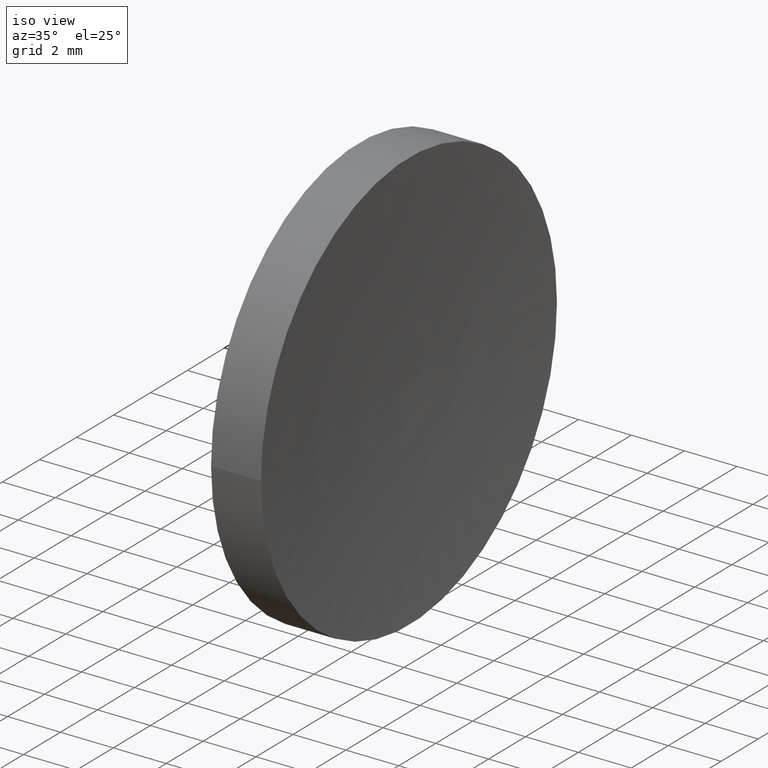
[diagram: clean part render]
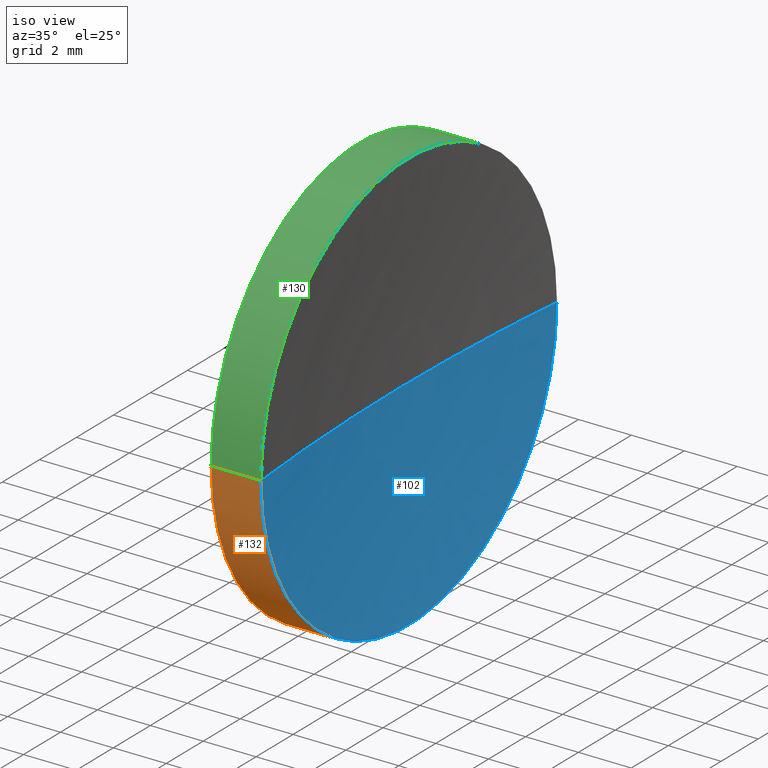
[diagram: same view with three faces highlighted in distinct colors, each labeled with its STEP entity id]
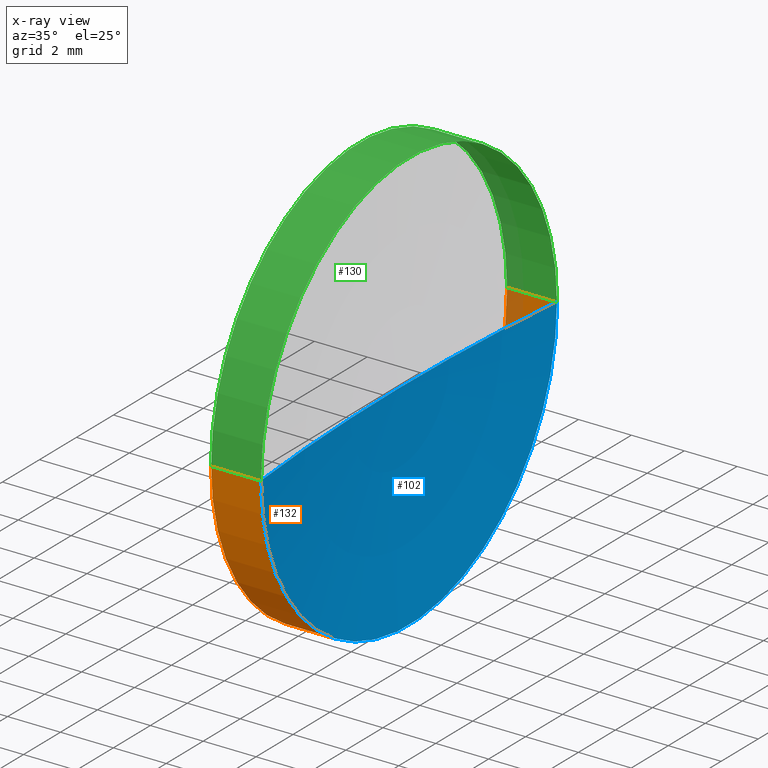
[diagram: x-ray of the same camera — body ghosted, the three highlighted faces saturated]
A machine part, iso view with three faces highlighted in distinct colors.
The next image is the same camera in x-ray (body ghosted, the three faces saturated) — at least one of them is partly hidden behind the body in this view.
Their STEP definitions:

[orange] entity #132 — the highlighted cylindrical surface (partial cylindrical patch) has radius 8 mm, axis along (-1, 0, -0).
#1 = VERTEX_POINT ( 'NONE', #159 ) ;
#2 = AXIS2_PLACEMENT_3D ( 'NONE', #19, #97, #115 ) ;
#10 = CARTESIAN_POINT ( 'NONE',  ( 44.85442262622448300, 34.06225218280608400, 9.797174393178825700E-016 ) ) ;
#18 = DIRECTION ( 'NONE',  ( -1.000000000000000000, 4.058245434298766700E-016, -0.0000000000000000000 ) ) ;
#19 = CARTESIAN_POINT ( 'NONE',  ( 44.85442262622448300, 26.06225218280608400, 0.0000000000000000000 ) ) ;
#32 = CARTESIAN_POINT ( 'NONE',  ( 46.74264137625596800, 34.06225218280607700, 9.797174393178817800E-016 ) ) ;
#36 = DIRECTION ( 'NONE',  ( 0.0000000000000000000, -1.000000000000000000, 0.0000000000000000000 ) ) ;
#38 = VECTOR ( 'NONE', #18, 1000.000000000000000 ) ;
#41 = CARTESIAN_POINT ( 'NONE',  ( 46.74264137625596800, 18.06225218280609100, 0.0000000000000000000 ) ) ;
#54 = EDGE_LOOP ( 'NONE', ( #92, #109, #133, #135 ) ) ;
#55 = CARTESIAN_POINT ( 'NONE',  ( 46.74264137625597500, 26.06225218280608400, 0.0000000000000000000 ) ) ;
#57 = DIRECTION ( 'NONE',  ( -1.000000000000000000, 4.058245434298766700E-016, -0.0000000000000000000 ) ) ;
#60 = VECTOR ( 'NONE', #98, 1000.000000000000000 ) ;
#61 = LINE ( 'NONE', #111, #38 ) ;
#62 = CIRCLE ( 'NONE', #2, 8.000000000000000000 ) ;
#70 = VERTEX_POINT ( 'NONE', #41 ) ;
#76 = EDGE_CURVE ( 'NONE', #145, #1, #62, .T. ) ;
#77 = CYLINDRICAL_SURFACE ( 'NONE', #91, 8.000000000000000000 ) ;
#79 = EDGE_CURVE ( 'NONE', #70, #1, #61, .T. ) ;
#86 = CARTESIAN_POINT ( 'NONE',  ( 43.01195023616492100, 26.06225218280608400, 0.0000000000000000000 ) ) ;
#88 = DIRECTION ( 'NONE',  ( 0.0000000000000000000, -1.000000000000000000, 0.0000000000000000000 ) ) ;
#89 = CIRCLE ( 'NONE', #99, 8.000000000000000000 ) ;
#91 = AXIS2_PLACEMENT_3D ( 'NONE', #86, #57, #88 ) ;
#92 = ORIENTED_EDGE ( 'NONE', *, *, #165, .F. ) ;
#97 = DIRECTION ( 'NONE',  ( -1.000000000000000000, 4.058245434298766700E-016, -0.0000000000000000000 ) ) ;
#98 = DIRECTION ( 'NONE',  ( -1.000000000000000000, 4.058245434298766700E-016, -0.0000000000000000000 ) ) ;
#99 = AXIS2_PLACEMENT_3D ( 'NONE', #55, #100, #36 ) ;
#100 = DIRECTION ( 'NONE',  ( -1.000000000000000000, 4.058245434298766700E-016, -0.0000000000000000000 ) ) ;
#109 = ORIENTED_EDGE ( 'NONE', *, *, #150, .T. ) ;
#111 = CARTESIAN_POINT ( 'NONE',  ( 43.01195023616492100, 18.06225218280608400, 0.0000000000000000000 ) ) ;
#115 = DIRECTION ( 'NONE',  ( 0.0000000000000000000, -1.000000000000000000, 0.0000000000000000000 ) ) ;
#121 = FACE_OUTER_BOUND ( 'NONE', #54, .T. ) ;
#132 = ADVANCED_FACE ( 'NONE', ( #121 ), #77, .T. ) ;
#133 = ORIENTED_EDGE ( 'NONE', *, *, #79, .T. ) ;
#135 = ORIENTED_EDGE ( 'NONE', *, *, #76, .F. ) ;
#141 = VERTEX_POINT ( 'NONE', #32 ) ;
#145 = VERTEX_POINT ( 'NONE', #10 ) ;
#149 = CARTESIAN_POINT ( 'NONE',  ( 43.01195023616492100, 34.06225218280608400, 9.797174393178825700E-016 ) ) ;
#150 = EDGE_CURVE ( 'NONE', #141, #70, #89, .T. ) ;
#153 = LINE ( 'NONE', #149, #60 ) ;
#159 = CARTESIAN_POINT ( 'NONE',  ( 44.85442262622448300, 18.06225218280608400, 0.0000000000000000000 ) ) ;
#165 = EDGE_CURVE ( 'NONE', #141, #145, #153, .T. ) ;

[blue] entity #102 — the highlighted toroidal blend (fillet) surface has major radius 0.0001 mm and minor (blend) radius 82.62 mm.
#4 = ORIENTED_EDGE ( 'NONE', *, *, #48, .T. ) ;
#14 = TOROIDAL_SURFACE ( 'NONE', #39, 9.047141961307206700E-005, 82.62000000000003300 ) ;
#20 = DIRECTION ( 'NONE',  ( -1.000000000000000000, 0.0000000000000000000, 0.0000000000000000000 ) ) ;
#28 = ORIENTED_EDGE ( 'NONE', *, *, #74, .F. ) ;
#30 = CARTESIAN_POINT ( 'NONE',  ( 128.9744226261749700, 26.06225218280604800, 0.0000000000000000000 ) ) ;
#32 = CARTESIAN_POINT ( 'NONE',  ( 46.74264137625596800, 34.06225218280607700, 9.797174393178817800E-016 ) ) ;
#36 = DIRECTION ( 'NONE',  ( 0.0000000000000000000, -1.000000000000000000, 0.0000000000000000000 ) ) ;
#39 = AXIS2_PLACEMENT_3D ( 'NONE', #30, #164, #120 ) ;
#40 = DIRECTION ( 'NONE',  ( -4.969917281268344600E-032, -1.224646799147353200E-016, 1.000000000000000000 ) ) ;
#41 = CARTESIAN_POINT ( 'NONE',  ( 46.74264137625596800, 18.06225218280609100, 0.0000000000000000000 ) ) ;
#43 = FACE_OUTER_BOUND ( 'NONE', #123, .T. ) ;
#48 = EDGE_CURVE ( 'NONE', #141, #147, #110, .T. ) ;
#55 = CARTESIAN_POINT ( 'NONE',  ( 46.74264137625597500, 26.06225218280608400, 0.0000000000000000000 ) ) ;
#66 = DIRECTION ( 'NONE',  ( 0.0000000000000000000, -0.0000000000000000000, -1.000000000000000000 ) ) ;
#70 = VERTEX_POINT ( 'NONE', #41 ) ;
#74 = EDGE_CURVE ( 'NONE', #70, #147, #107, .T. ) ;
#75 = AXIS2_PLACEMENT_3D ( 'NONE', #148, #66, #20 ) ;
#89 = CIRCLE ( 'NONE', #99, 8.000000000000000000 ) ;
#99 = AXIS2_PLACEMENT_3D ( 'NONE', #55, #100, #36 ) ;
#100 = DIRECTION ( 'NONE',  ( -1.000000000000000000, 4.058245434298766700E-016, -0.0000000000000000000 ) ) ;
#102 = ADVANCED_FACE ( 'NONE', ( #43 ), #14, .F. ) ;
#107 = CIRCLE ( 'NONE', #75, 82.62000000000003300 ) ;
#110 = CIRCLE ( 'NONE', #114, 82.62000000000003300 ) ;
#112 = DIRECTION ( 'NONE',  ( 0.0000000000000000000, -1.000000000000000000, -1.224646799147353000E-016 ) ) ;
#113 = CARTESIAN_POINT ( 'NONE',  ( 128.9744226261749700, 26.06234265422566300, 1.107955344434657900E-020 ) ) ;
#114 = AXIS2_PLACEMENT_3D ( 'NONE', #113, #40, #112 ) ;
#120 = DIRECTION ( 'NONE',  ( -4.058245434298766700E-016, -1.000000000000000000, 0.0000000000000000000 ) ) ;
#123 = EDGE_LOOP ( 'NONE', ( #131, #4, #28 ) ) ;
#131 = ORIENTED_EDGE ( 'NONE', *, *, #150, .F. ) ;
#141 = VERTEX_POINT ( 'NONE', #32 ) ;
#147 = VERTEX_POINT ( 'NONE', #151 ) ;
#148 = CARTESIAN_POINT ( 'NONE',  ( 128.9744226261749700, 26.06216171138643700, 0.0000000000000000000 ) ) ;
#150 = EDGE_CURVE ( 'NONE', #141, #70, #89, .T. ) ;
#151 = CARTESIAN_POINT ( 'NONE',  ( 46.35442262622449800, 26.06225218280608400, 0.0000000000000000000 ) ) ;
#164 = DIRECTION ( 'NONE',  ( -1.000000000000000000, 4.058245434298766700E-016, -0.0000000000000000000 ) ) ;

[green] entity #130 — the highlighted cylindrical surface (partial cylindrical patch) has radius 8 mm, axis along (-1, 0, -0).
#1 = VERTEX_POINT ( 'NONE', #159 ) ;
#10 = CARTESIAN_POINT ( 'NONE',  ( 44.85442262622448300, 34.06225218280608400, 9.797174393178825700E-016 ) ) ;
#18 = DIRECTION ( 'NONE',  ( -1.000000000000000000, 4.058245434298766700E-016, -0.0000000000000000000 ) ) ;
#23 = CYLINDRICAL_SURFACE ( 'NONE', #119, 8.000000000000000000 ) ;
#27 = ORIENTED_EDGE ( 'NONE', *, *, #157, .F. ) ;
#29 = EDGE_LOOP ( 'NONE', ( #144, #37, #27, #52 ) ) ;
#31 = FACE_OUTER_BOUND ( 'NONE', #29, .T. ) ;
#32 = CARTESIAN_POINT ( 'NONE',  ( 46.74264137625596800, 34.06225218280607700, 9.797174393178817800E-016 ) ) ;
#35 = DIRECTION ( 'NONE',  ( -1.000000000000000000, 4.058245434298766700E-016, -0.0000000000000000000 ) ) ;
#37 = ORIENTED_EDGE ( 'NONE', *, *, #165, .T. ) ;
#38 = VECTOR ( 'NONE', #18, 1000.000000000000000 ) ;
#41 = CARTESIAN_POINT ( 'NONE',  ( 46.74264137625596800, 18.06225218280609100, 0.0000000000000000000 ) ) ;
#42 = CIRCLE ( 'NONE', #124, 8.000000000000000000 ) ;
#44 = DIRECTION ( 'NONE',  ( -1.000000000000000000, 4.058245434298766700E-016, -0.0000000000000000000 ) ) ;
#52 = ORIENTED_EDGE ( 'NONE', *, *, #79, .F. ) ;
#60 = VECTOR ( 'NONE', #98, 1000.000000000000000 ) ;
#61 = LINE ( 'NONE', #111, #38 ) ;
#69 = DIRECTION ( 'NONE',  ( 0.0000000000000000000, -1.000000000000000000, 0.0000000000000000000 ) ) ;
#70 = VERTEX_POINT ( 'NONE', #41 ) ;
#72 = CARTESIAN_POINT ( 'NONE',  ( 43.01195023616492100, 26.06225218280608400, 0.0000000000000000000 ) ) ;
#79 = EDGE_CURVE ( 'NONE', #70, #1, #61, .T. ) ;
#87 = AXIS2_PLACEMENT_3D ( 'NONE', #152, #103, #118 ) ;
#98 = DIRECTION ( 'NONE',  ( -1.000000000000000000, 4.058245434298766700E-016, -0.0000000000000000000 ) ) ;
#101 = DIRECTION ( 'NONE',  ( 0.0000000000000000000, -1.000000000000000000, 0.0000000000000000000 ) ) ;
#103 = DIRECTION ( 'NONE',  ( -1.000000000000000000, 4.058245434298766700E-016, -0.0000000000000000000 ) ) ;
#111 = CARTESIAN_POINT ( 'NONE',  ( 43.01195023616492100, 18.06225218280608400, 0.0000000000000000000 ) ) ;
#118 = DIRECTION ( 'NONE',  ( 0.0000000000000000000, -1.000000000000000000, 0.0000000000000000000 ) ) ;
#119 = AXIS2_PLACEMENT_3D ( 'NONE', #72, #35, #101 ) ;
#124 = AXIS2_PLACEMENT_3D ( 'NONE', #142, #44, #69 ) ;
#130 = ADVANCED_FACE ( 'NONE', ( #31 ), #23, .T. ) ;
#141 = VERTEX_POINT ( 'NONE', #32 ) ;
#142 = CARTESIAN_POINT ( 'NONE',  ( 46.74264137625597500, 26.06225218280608400, 0.0000000000000000000 ) ) ;
#144 = ORIENTED_EDGE ( 'NONE', *, *, #156, .T. ) ;
#145 = VERTEX_POINT ( 'NONE', #10 ) ;
#149 = CARTESIAN_POINT ( 'NONE',  ( 43.01195023616492100, 34.06225218280608400, 9.797174393178825700E-016 ) ) ;
#152 = CARTESIAN_POINT ( 'NONE',  ( 44.85442262622448300, 26.06225218280608400, 0.0000000000000000000 ) ) ;
#153 = LINE ( 'NONE', #149, #60 ) ;
#154 = CIRCLE ( 'NONE', #87, 8.000000000000000000 ) ;
#156 = EDGE_CURVE ( 'NONE', #70, #141, #42, .T. ) ;
#157 = EDGE_CURVE ( 'NONE', #1, #145, #154, .T. ) ;
#159 = CARTESIAN_POINT ( 'NONE',  ( 44.85442262622448300, 18.06225218280608400, 0.0000000000000000000 ) ) ;
#165 = EDGE_CURVE ( 'NONE', #141, #145, #153, .T. ) ;